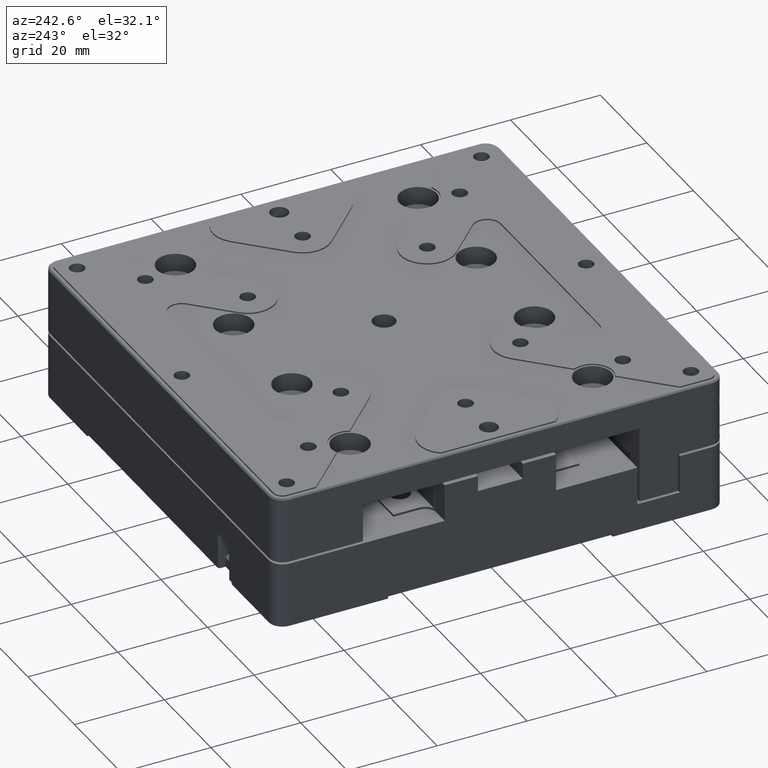
[diagram: clean part render]
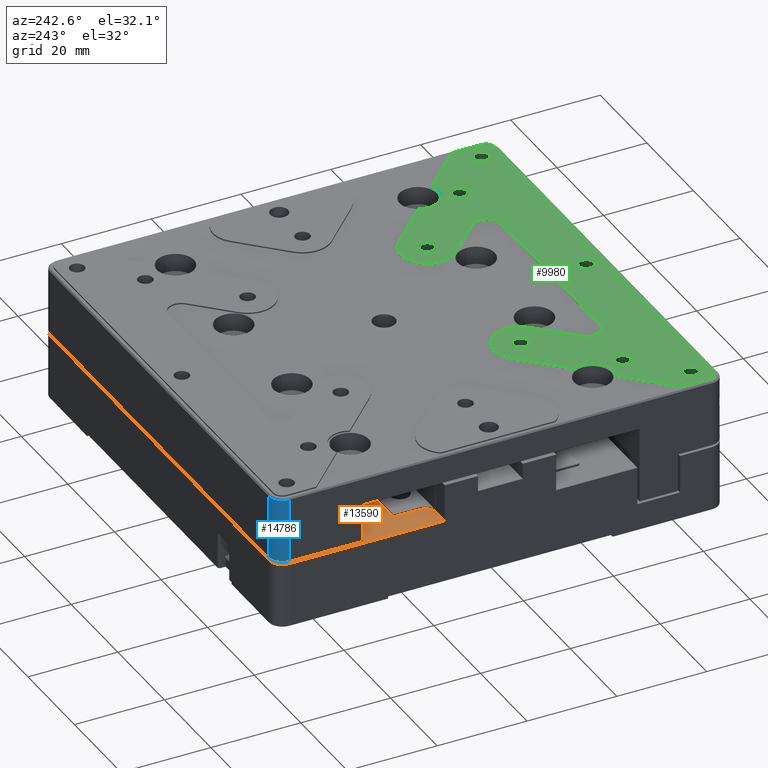
[diagram: same view with three faces highlighted in distinct colors, each labeled with its STEP entity id]
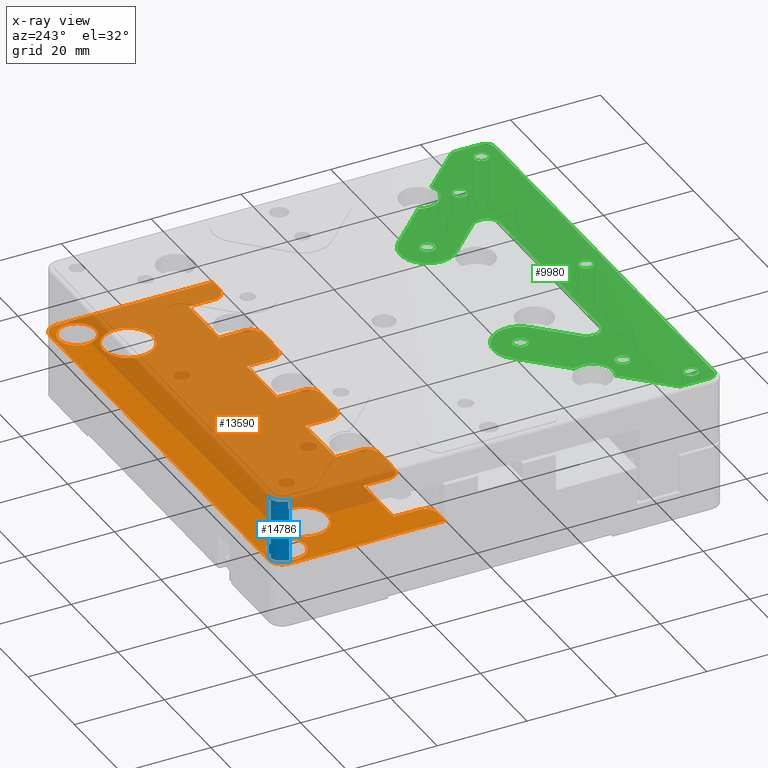
[diagram: x-ray of the same camera — body ghosted, the three highlighted faces saturated]
A machine part, auxiliary view with three faces highlighted in distinct colors.
The next image is the same camera in x-ray (body ghosted, the three faces saturated) — at least one of them is partly hidden behind the body in this view.
Their STEP definitions:

[orange] entity #13590 — the highlighted planar face has unit normal (0, 0, 1).
#23 = LINE ( 'NONE', #1503, #3641 ) ;
#45 = EDGE_CURVE ( 'NONE', #12319, #4092, #114, .T. ) ;
#61 = CARTESIAN_POINT ( 'NONE',  ( -6.000000000000000000, 14.90000000000000036, 0.000000000000000000 ) ) ;
#114 = CIRCLE ( 'NONE', #14638, 2.500000000000002220 ) ;
#212 = EDGE_LOOP ( 'NONE', ( #8987, #11406 ) ) ;
#275 = DIRECTION ( 'NONE',  ( 0.000000000000000000, -1.000000000000000000, -0.000000000000000000 ) ) ;
#311 = EDGE_LOOP ( 'NONE', ( #4847, #12767, #4104, #7690, #5589, #6578, #14980, #6344, #11140, #9844, #2049, #8333, #1089, #13014, #11043, #3247, #9197, #2234, #16227, #2895, #15746, #12099, #2951, #16032, #10015, #2976, #12228, #13439, #12610, #11674 ) ) ;
#356 = CARTESIAN_POINT ( 'NONE',  ( 50.00000000000000000, 47.00000000000000000, 0.000000000000000000 ) ) ;
#375 = VERTEX_POINT ( 'NONE', #9389 ) ;
#416 = CARTESIAN_POINT ( 'NONE',  ( -31.00000000000000000, 20.69999999999999929, 0.000000000000000000 ) ) ;
#720 = CARTESIAN_POINT ( 'NONE',  ( 47.00000000000000000, 50.00000000000000000, 0.000000000000000000 ) ) ;
#878 = EDGE_CURVE ( 'NONE', #7164, #10472, #13311, .T. ) ;
#904 = CIRCLE ( 'NONE', #16218, 2.499999999999998668 ) ;
#913 = DIRECTION ( 'NONE',  ( 0.000000000000000000, -1.000000000000000000, -0.000000000000000000 ) ) ;
#1071 = EDGE_CURVE ( 'NONE', #16219, #15278, #13886, .T. ) ;
#1089 = ORIENTED_EDGE ( 'NONE', *, *, #10615, .T. ) ;
#1130 = EDGE_CURVE ( 'NONE', #6805, #4402, #8594, .T. ) ;
#1132 = DIRECTION ( 'NONE',  ( -0.000000000000000000, 1.000000000000000000, 0.000000000000000000 ) ) ;
#1239 = CARTESIAN_POINT ( 'NONE',  ( -50.00000000000000000, 12.40000000000000213, 0.000000000000000000 ) ) ;
#1261 = DIRECTION ( 'NONE',  ( 1.000000000000000000, 0.000000000000000000, -0.000000000000000000 ) ) ;
#1277 = DIRECTION ( 'NONE',  ( 0.000000000000000000, -1.000000000000000000, -0.000000000000000000 ) ) ;
#1325 = CARTESIAN_POINT ( 'NONE',  ( -31.00000000000000000, 50.00000000000000000, 0.000000000000000000 ) ) ;
#1411 = CARTESIAN_POINT ( 'NONE',  ( 32.00500000000022993, 38.57934007615880034, 0.000000000000000000 ) ) ;
#1503 = CARTESIAN_POINT ( 'NONE',  ( 19.00000000000000355, 50.00000000000000000, 0.000000000000000000 ) ) ;
#1610 = DIRECTION ( 'NONE',  ( 0.000000000000000000, 0.000000000000000000, 1.000000000000000000 ) ) ;
#1611 = DIRECTION ( 'NONE',  ( -1.000000000000000000, 0.000000000000000000, 0.000000000000000000 ) ) ;
#1623 = DIRECTION ( 'NONE',  ( 1.000000000000000000, 0.000000000000000000, -0.000000000000000000 ) ) ;
#1684 = FACE_OUTER_BOUND ( 'NONE', #311, .T. ) ;
#1691 = EDGE_LOOP ( 'NONE', ( #10911 ) ) ;
#1713 = VERTEX_POINT ( 'NONE', #13422 ) ;
#1786 = LINE ( 'NONE', #11881, #9193 ) ;
#1889 = CARTESIAN_POINT ( 'NONE',  ( 31.00000000000000000, 14.90000000000000036, 0.000000000000000000 ) ) ;
#1923 = ORIENTED_EDGE ( 'NONE', *, *, #8298, .T. ) ;
#1989 = EDGE_CURVE ( 'NONE', #10472, #12113, #15227, .T. ) ;
#2027 = VECTOR ( 'NONE', #9925, 1000.000000000000000 ) ;
#2032 = CARTESIAN_POINT ( 'NONE',  ( -44.00000000000000000, 14.90000000000000036, 0.000000000000000000 ) ) ;
#2049 = ORIENTED_EDGE ( 'NONE', *, *, #3032, .T. ) ;
#2070 = CARTESIAN_POINT ( 'NONE',  ( -50.00000000000000711, 12.40000000000000213, 0.000000000000000000 ) ) ;
#2082 = EDGE_CURVE ( 'NONE', #5764, #5764, #7048, .T. ) ;
#2187 = DIRECTION ( 'NONE',  ( 0.000000000000000000, -1.000000000000000000, -0.000000000000000000 ) ) ;
#2234 = ORIENTED_EDGE ( 'NONE', *, *, #5560, .T. ) ;
#2332 = CARTESIAN_POINT ( 'NONE',  ( 21.50000000000000355, 12.40000000000000213, 0.000000000000000000 ) ) ;
#2424 = VERTEX_POINT ( 'NONE', #10344 ) ;
#2442 = LINE ( 'NONE', #16363, #4693 ) ;
#2458 = DIRECTION ( 'NONE',  ( 0.000000000000000000, 0.000000000000000000, 1.000000000000000000 ) ) ;
#2511 = CARTESIAN_POINT ( 'NONE',  ( 44.00000000000000000, 50.00000000000000000, 0.000000000000000000 ) ) ;
#2596 = EDGE_CURVE ( 'NONE', #5903, #7899, #12883, .T. ) ;
#2614 = EDGE_CURVE ( 'NONE', #5907, #6805, #5747, .T. ) ;
#2701 = EDGE_CURVE ( 'NONE', #12699, #8642, #4736, .T. ) ;
#2790 = CARTESIAN_POINT ( 'NONE',  ( -50.00000000000000000, 47.00000000000000000, 0.000000000000000000 ) ) ;
#2867 = CARTESIAN_POINT ( 'NONE',  ( -50.00000000000000000, 20.69999999999999929, 0.000000000000000000 ) ) ;
#2895 = ORIENTED_EDGE ( 'NONE', *, *, #10763, .T. ) ;
#2951 = ORIENTED_EDGE ( 'NONE', *, *, #7321, .T. ) ;
#2976 = ORIENTED_EDGE ( 'NONE', *, *, #5782, .F. ) ;
#2983 = DIRECTION ( 'NONE',  ( 1.000000000000000000, 0.000000000000000000, 0.000000000000000000 ) ) ;
#3032 = EDGE_CURVE ( 'NONE', #5573, #13750, #8680, .T. ) ;
#3057 = CIRCLE ( 'NONE', #4642, 2.499999999999998668 ) ;
#3096 = DIRECTION ( 'NONE',  ( 1.000000000000000000, 0.000000000000000000, 0.000000000000000000 ) ) ;
#3097 = DIRECTION ( 'NONE',  ( 1.000000000000000000, 0.000000000000000000, 0.000000000000000000 ) ) ;
#3181 = DIRECTION ( 'NONE',  ( 1.000000000000000000, 0.000000000000000000, -0.000000000000000000 ) ) ;
#3199 = CARTESIAN_POINT ( 'NONE',  ( 49.12500000000000000, 45.00000000000000000, 0.000000000000000000 ) ) ;
#3247 = ORIENTED_EDGE ( 'NONE', *, *, #13649, .T. ) ;
#3257 = DIRECTION ( 'NONE',  ( 0.000000000000000000, 0.000000000000000000, 1.000000000000000000 ) ) ;
#3313 = CARTESIAN_POINT ( 'NONE',  ( 50.00000000000000000, 0.000000000000000000, 0.000000000000000000 ) ) ;
#3331 = AXIS2_PLACEMENT_3D ( 'NONE', #7198, #10760, #8356 ) ;
#3630 = VERTEX_POINT ( 'NONE', #10071 ) ;
#3641 = VECTOR ( 'NONE', #275, 1000.000000000000000 ) ;
#3648 = VERTEX_POINT ( 'NONE', #5194 ) ;
#3742 = LINE ( 'NONE', #15148, #13647 ) ;
#3798 = EDGE_CURVE ( 'NONE', #3648, #12522, #11197, .T. ) ;
#3870 = CARTESIAN_POINT ( 'NONE',  ( 32.00500000000022993, 36.42065992384119966, 0.000000000000000000 ) ) ;
#3933 = LINE ( 'NONE', #2511, #6858 ) ;
#3986 = VECTOR ( 'NONE', #14633, 1000.000000000000000 ) ;
#4036 = DIRECTION ( 'NONE',  ( -0.000000000000000000, 1.000000000000000000, 0.000000000000000000 ) ) ;
#4087 = VECTOR ( 'NONE', #6124, 1000.000000000000000 ) ;
#4092 = VERTEX_POINT ( 'NONE', #7729 ) ;
#4104 = ORIENTED_EDGE ( 'NONE', *, *, #4506, .T. ) ;
#4268 = DIRECTION ( 'NONE',  ( -0.000000000000000000, -0.000000000000000000, 1.000000000000000000 ) ) ;
#4281 = LINE ( 'NONE', #5439, #7387 ) ;
#4306 = CARTESIAN_POINT ( 'NONE',  ( -53.50000000000000000, 12.40000000000000213, 0.000000000000000000 ) ) ;
#4326 = DIRECTION ( 'NONE',  ( 1.000000000000000000, 0.000000000000000000, 0.000000000000000000 ) ) ;
#4340 = EDGE_CURVE ( 'NONE', #15278, #5907, #7370, .T. ) ;
#4342 = CIRCLE ( 'NONE', #5128, 3.000000000000002665 ) ;
#4382 = VECTOR ( 'NONE', #14965, 1000.000000000000000 ) ;
#4402 = VERTEX_POINT ( 'NONE', #4875 ) ;
#4506 = EDGE_CURVE ( 'NONE', #7378, #16219, #9096, .T. ) ;
#4574 = CARTESIAN_POINT ( 'NONE',  ( -32.00500000000022993, 38.57934007615880034, 0.000000000000000000 ) ) ;
#4642 = AXIS2_PLACEMENT_3D ( 'NONE', #14284, #1610, #3096 ) ;
#4673 = DIRECTION ( 'NONE',  ( 1.000000000000000000, 0.000000000000000000, 0.000000000000000000 ) ) ;
#4693 = VECTOR ( 'NONE', #1132, 1000.000000000000000 ) ;
#4736 = LINE ( 'NONE', #13578, #4955 ) ;
#4749 = CARTESIAN_POINT ( 'NONE',  ( 3.500000000000000444, 12.40000000000000213, 0.000000000000000000 ) ) ;
#4847 = ORIENTED_EDGE ( 'NONE', *, *, #12701, .T. ) ;
#4874 = CARTESIAN_POINT ( 'NONE',  ( -50.00000000000000000, 12.40000000000000213, 0.000000000000000000 ) ) ;
#4875 = CARTESIAN_POINT ( 'NONE',  ( -19.00000000000000000, 20.69999999999999929, 0.000000000000000000 ) ) ;
#4955 = VECTOR ( 'NONE', #8460, 1000.000000000000000 ) ;
#4961 = DIRECTION ( 'NONE',  ( 1.000000000000000000, 0.000000000000000000, -0.000000000000000000 ) ) ;
#5053 = CARTESIAN_POINT ( 'NONE',  ( -47.00000000000000000, 50.00000000000000000, 0.000000000000000000 ) ) ;
#5095 = EDGE_LOOP ( 'NONE', ( #12544, #1923 ) ) ;
#5122 = DIRECTION ( 'NONE',  ( 1.000000000000000000, 0.000000000000000000, -0.000000000000000000 ) ) ;
#5128 = AXIS2_PLACEMENT_3D ( 'NONE', #6585, #4268, #1611 ) ;
#5194 = CARTESIAN_POINT ( 'NONE',  ( -32.00500000000022993, 36.42065992384119966, 0.000000000000000000 ) ) ;
#5236 = EDGE_CURVE ( 'NONE', #12522, #3648, #12284, .T. ) ;
#5417 = CARTESIAN_POINT ( 'NONE',  ( 21.50000000000000000, 14.90000000000000036, 0.000000000000000000 ) ) ;
#5431 = AXIS2_PLACEMENT_3D ( 'NONE', #13807, #2458, #12406 ) ;
#5439 = CARTESIAN_POINT ( 'NONE',  ( 32.00500000000000256, 50.00000000000000000, 0.000000000000000000 ) ) ;
#5451 = VECTOR ( 'NONE', #913, 1000.000000000000000 ) ;
#5560 = EDGE_CURVE ( 'NONE', #8642, #11519, #3057, .T. ) ;
#5573 = VERTEX_POINT ( 'NONE', #14517 ) ;
#5576 = DIRECTION ( 'NONE',  ( 0.000000000000000000, 0.000000000000000000, 1.000000000000000000 ) ) ;
#5589 = ORIENTED_EDGE ( 'NONE', *, *, #4340, .T. ) ;
#5593 = DIRECTION ( 'NONE',  ( 1.000000000000000000, 0.000000000000000000, -0.000000000000000000 ) ) ;
#5644 = EDGE_CURVE ( 'NONE', #13750, #9316, #8615, .T. ) ;
#5747 = CIRCLE ( 'NONE', #13674, 2.499999999999998668 ) ;
#5748 = CIRCLE ( 'NONE', #11026, 5.600000000000000533 ) ;
#5764 = VERTEX_POINT ( 'NONE', #3199 ) ;
#5782 = EDGE_CURVE ( 'NONE', #10306, #7899, #3742, .T. ) ;
#5816 = DIRECTION ( 'NONE',  ( 1.000000000000000000, 0.000000000000000000, 0.000000000000000000 ) ) ;
#5876 = DIRECTION ( 'NONE',  ( 1.000000000000000000, 0.000000000000000000, 0.000000000000000000 ) ) ;
#5903 = VERTEX_POINT ( 'NONE', #356 ) ;
#5907 = VERTEX_POINT ( 'NONE', #6647 ) ;
#5952 = VECTOR ( 'NONE', #2187, 1000.000000000000000 ) ;
#5988 = DIRECTION ( 'NONE',  ( 1.000000000000000000, 0.000000000000000000, 0.000000000000000000 ) ) ;
#6124 = DIRECTION ( 'NONE',  ( 1.000000000000000000, 0.000000000000000000, -0.000000000000000000 ) ) ;
#6344 = ORIENTED_EDGE ( 'NONE', *, *, #10754, .T. ) ;
#6556 = VERTEX_POINT ( 'NONE', #61 ) ;
#6557 = DIRECTION ( 'NONE',  ( 0.000000000000000000, 0.000000000000000000, 1.000000000000000000 ) ) ;
#6578 = ORIENTED_EDGE ( 'NONE', *, *, #2614, .T. ) ;
#6585 = CARTESIAN_POINT ( 'NONE',  ( -47.00000000000000000, 47.00000000000000000, 0.000000000000000000 ) ) ;
#6647 = CARTESIAN_POINT ( 'NONE',  ( -21.50000000000000000, 12.40000000000000213, 0.000000000000000000 ) ) ;
#6741 = DIRECTION ( 'NONE',  ( 1.000000000000000000, 0.000000000000000000, -0.000000000000000000 ) ) ;
#6805 = VERTEX_POINT ( 'NONE', #12367 ) ;
#6826 = FACE_BOUND ( 'NONE', #5095, .T. ) ;
#6828 = LINE ( 'NONE', #9312, #7113 ) ;
#6858 = VECTOR ( 'NONE', #1277, 1000.000000000000000 ) ;
#6907 = FACE_BOUND ( 'NONE', #212, .T. ) ;
#6978 = DIRECTION ( 'NONE',  ( -0.000000000000000000, -0.000000000000000000, -1.000000000000000000 ) ) ;
#7024 = VECTOR ( 'NONE', #5122, 1000.000000000000000 ) ;
#7048 = CIRCLE ( 'NONE', #3331, 4.125000000000003553 ) ;
#7084 = CARTESIAN_POINT ( 'NONE',  ( -5.999999999999998224, 50.00000000000000000, 0.000000000000000000 ) ) ;
#7095 = EDGE_CURVE ( 'NONE', #9097, #7164, #13316, .T. ) ;
#7112 = EDGE_CURVE ( 'NONE', #375, #375, #13903, .T. ) ;
#7113 = VECTOR ( 'NONE', #3181, 1000.000000000000000 ) ;
#7164 = VERTEX_POINT ( 'NONE', #2070 ) ;
#7198 = CARTESIAN_POINT ( 'NONE',  ( 45.00000000000000000, 45.00000000000000000, 0.000000000000000000 ) ) ;
#7261 = CARTESIAN_POINT ( 'NONE',  ( -3.500000000000000000, 14.90000000000000036, 0.000000000000000000 ) ) ;
#7321 = EDGE_CURVE ( 'NONE', #4092, #14963, #11164, .T. ) ;
#7370 = LINE ( 'NONE', #1239, #4087 ) ;
#7378 = VERTEX_POINT ( 'NONE', #416 ) ;
#7387 = VECTOR ( 'NONE', #4036, 1000.000000000000000 ) ;
#7388 = CARTESIAN_POINT ( 'NONE',  ( -44.00000000000000000, 50.00000000000000000, 0.000000000000000000 ) ) ;
#7553 = AXIS2_PLACEMENT_3D ( 'NONE', #8443, #9447, #5876 ) ;
#7670 = VECTOR ( 'NONE', #8366, 1000.000000000000000 ) ;
#7690 = ORIENTED_EDGE ( 'NONE', *, *, #1071, .T. ) ;
#7701 = VERTEX_POINT ( 'NONE', #8582 ) ;
#7729 = CARTESIAN_POINT ( 'NONE',  ( 46.50000000000000000, 12.40000000000000213, 0.000000000000000000 ) ) ;
#7899 = VERTEX_POINT ( 'NONE', #720 ) ;
#8034 = AXIS2_PLACEMENT_3D ( 'NONE', #10311, #8149, #6741 ) ;
#8149 = DIRECTION ( 'NONE',  ( 0.000000000000000000, 0.000000000000000000, 1.000000000000000000 ) ) ;
#8220 = DIRECTION ( 'NONE',  ( 0.000000000000000000, 0.000000000000000000, 1.000000000000000000 ) ) ;
#8298 = EDGE_CURVE ( 'NONE', #10923, #15067, #5748, .T. ) ;
#8313 = CARTESIAN_POINT ( 'NONE',  ( -28.50000000000000000, 12.40000000000000213, 0.000000000000000000 ) ) ;
#8333 = ORIENTED_EDGE ( 'NONE', *, *, #5644, .T. ) ;
#8356 = DIRECTION ( 'NONE',  ( 1.000000000000000000, 0.000000000000000000, 0.000000000000000000 ) ) ;
#8366 = DIRECTION ( 'NONE',  ( 0.000000000000000000, -1.000000000000000000, -0.000000000000000000 ) ) ;
#8443 = CARTESIAN_POINT ( 'NONE',  ( -45.00000000000000000, 45.00000000000000000, 0.000000000000000000 ) ) ;
#8460 = DIRECTION ( 'NONE',  ( 1.000000000000000000, 0.000000000000000000, -0.000000000000000000 ) ) ;
#8491 = CARTESIAN_POINT ( 'NONE',  ( 6.000000000000000000, 14.90000000000000036, 0.000000000000000000 ) ) ;
#8499 = DIRECTION ( 'NONE',  ( 1.000000000000000000, 0.000000000000000000, 0.000000000000000000 ) ) ;
#8580 = DIRECTION ( 'NONE',  ( 0.000000000000000000, 0.000000000000000000, 1.000000000000000000 ) ) ;
#8582 = CARTESIAN_POINT ( 'NONE',  ( -44.00000000000000711, 20.69999999999999929, 0.000000000000000000 ) ) ;
#8594 = LINE ( 'NONE', #9918, #4382 ) ;
#8607 = LINE ( 'NONE', #3313, #7670 ) ;
#8615 = CIRCLE ( 'NONE', #8880, 2.500000000000000000 ) ;
#8642 = VERTEX_POINT ( 'NONE', #12596 ) ;
#8680 = LINE ( 'NONE', #12162, #10811 ) ;
#8762 = LINE ( 'NONE', #8934, #7024 ) ;
#8880 = AXIS2_PLACEMENT_3D ( 'NONE', #10943, #10788, #5988 ) ;
#8934 = CARTESIAN_POINT ( 'NONE',  ( -50.00000000000000000, 20.69999999999999929, 0.000000000000000000 ) ) ;
#8987 = ORIENTED_EDGE ( 'NONE', *, *, #5236, .T. ) ;
#9096 = LINE ( 'NONE', #1325, #13337 ) ;
#9097 = VERTEX_POINT ( 'NONE', #2790 ) ;
#9193 = VECTOR ( 'NONE', #5593, 1000.000000000000000 ) ;
#9197 = ORIENTED_EDGE ( 'NONE', *, *, #2701, .T. ) ;
#9312 = CARTESIAN_POINT ( 'NONE',  ( -50.00000000000000000, 20.69999999999999929, 0.000000000000000000 ) ) ;
#9316 = VERTEX_POINT ( 'NONE', #8491 ) ;
#9389 = CARTESIAN_POINT ( 'NONE',  ( -40.87499999999999289, 45.00000000000000000, 0.000000000000000000 ) ) ;
#9447 = DIRECTION ( 'NONE',  ( -0.000000000000000000, -0.000000000000000000, -1.000000000000000000 ) ) ;
#9458 = VECTOR ( 'NONE', #1623, 1000.000000000000000 ) ;
#9545 = DIRECTION ( 'NONE',  ( 1.000000000000000000, 0.000000000000000000, 0.000000000000000000 ) ) ;
#9591 = DIRECTION ( 'NONE',  ( 1.000000000000000000, 0.000000000000000000, 0.000000000000000000 ) ) ;
#9599 = EDGE_CURVE ( 'NONE', #7701, #7378, #6828, .T. ) ;
#9725 = LINE ( 'NONE', #7084, #11620 ) ;
#9809 = DIRECTION ( 'NONE',  ( 0.000000000000000000, -1.000000000000000000, -0.000000000000000000 ) ) ;
#9844 = ORIENTED_EDGE ( 'NONE', *, *, #11692, .T. ) ;
#9918 = CARTESIAN_POINT ( 'NONE',  ( -19.00000000000000000, 50.00000000000000000, 0.000000000000000000 ) ) ;
#9925 = DIRECTION ( 'NONE',  ( 1.000000000000000000, 0.000000000000000000, -0.000000000000000000 ) ) ;
#10015 = ORIENTED_EDGE ( 'NONE', *, *, #2596, .T. ) ;
#10071 = CARTESIAN_POINT ( 'NONE',  ( 44.00000000000000711, 20.69999999999999929, 0.000000000000000000 ) ) ;
#10171 = CARTESIAN_POINT ( 'NONE',  ( -5.999999999999998224, 20.69999999999999929, 0.000000000000000000 ) ) ;
#10266 = EDGE_CURVE ( 'NONE', #5903, #14963, #8607, .T. ) ;
#10306 = VERTEX_POINT ( 'NONE', #5053 ) ;
#10311 = CARTESIAN_POINT ( 'NONE',  ( -50.00000000000000000, 50.00000000000000000, 0.000000000000000000 ) ) ;
#10344 = CARTESIAN_POINT ( 'NONE',  ( 19.00000000000000355, 14.90000000000000036, 0.000000000000000000 ) ) ;
#10472 = VERTEX_POINT ( 'NONE', #10738 ) ;
#10540 = AXIS2_PLACEMENT_3D ( 'NONE', #7261, #8580, #8499 ) ;
#10546 = FACE_BOUND ( 'NONE', #15909, .T. ) ;
#10615 = EDGE_CURVE ( 'NONE', #9316, #14847, #2442, .T. ) ;
#10637 = DIRECTION ( 'NONE',  ( 1.000000000000000000, 0.000000000000000000, 0.000000000000000000 ) ) ;
#10738 = CARTESIAN_POINT ( 'NONE',  ( -46.50000000000000000, 12.40000000000000213, 0.000000000000000000 ) ) ;
#10754 = EDGE_CURVE ( 'NONE', #4402, #14658, #14213, .T. ) ;
#10760 = DIRECTION ( 'NONE',  ( -0.000000000000000000, -0.000000000000000000, -1.000000000000000000 ) ) ;
#10763 = EDGE_CURVE ( 'NONE', #1713, #3630, #1786, .T. ) ;
#10788 = DIRECTION ( 'NONE',  ( 0.000000000000000000, 0.000000000000000000, 1.000000000000000000 ) ) ;
#10811 = VECTOR ( 'NONE', #4961, 1000.000000000000000 ) ;
#10911 = ORIENTED_EDGE ( 'NONE', *, *, #2082, .T. ) ;
#10923 = VERTEX_POINT ( 'NONE', #1411 ) ;
#10943 = CARTESIAN_POINT ( 'NONE',  ( 3.500000000000000000, 14.90000000000000036, 0.000000000000000000 ) ) ;
#10984 = CARTESIAN_POINT ( 'NONE',  ( 5.999999999999998224, 20.69999999999999929, 0.000000000000000000 ) ) ;
#11008 = EDGE_CURVE ( 'NONE', #14550, #2424, #23, .T. ) ;
#11026 = AXIS2_PLACEMENT_3D ( 'NONE', #11940, #6978, #9545 ) ;
#11043 = ORIENTED_EDGE ( 'NONE', *, *, #11008, .T. ) ;
#11140 = ORIENTED_EDGE ( 'NONE', *, *, #12124, .T. ) ;
#11164 = LINE ( 'NONE', #4874, #2027 ) ;
#11181 = DIRECTION ( 'NONE',  ( -0.000000000000000000, 1.000000000000000000, 0.000000000000000000 ) ) ;
#11197 = CIRCLE ( 'NONE', #13837, 5.600000000000000533 ) ;
#11226 = CARTESIAN_POINT ( 'NONE',  ( 50.00000000000000711, 12.40000000000000213, 0.000000000000000000 ) ) ;
#11298 = AXIS2_PLACEMENT_3D ( 'NONE', #13099, #8220, #5816 ) ;
#11406 = ORIENTED_EDGE ( 'NONE', *, *, #3798, .T. ) ;
#11519 = VERTEX_POINT ( 'NONE', #1889 ) ;
#11620 = VECTOR ( 'NONE', #9809, 1000.000000000000000 ) ;
#11674 = ORIENTED_EDGE ( 'NONE', *, *, #1989, .T. ) ;
#11692 = EDGE_CURVE ( 'NONE', #6556, #5573, #12117, .T. ) ;
#11745 = ORIENTED_EDGE ( 'NONE', *, *, #7112, .T. ) ;
#11789 = PLANE ( 'NONE',  #8034 ) ;
#11881 = CARTESIAN_POINT ( 'NONE',  ( -50.00000000000000000, 20.69999999999999929, 0.000000000000000000 ) ) ;
#11940 = CARTESIAN_POINT ( 'NONE',  ( 37.50000000000000000, 37.50000000000000000, 0.000000000000000000 ) ) ;
#11945 = EDGE_CURVE ( 'NONE', #15067, #10923, #4281, .T. ) ;
#12025 = VECTOR ( 'NONE', #9591, 1000.000000000000000 ) ;
#12058 = AXIS2_PLACEMENT_3D ( 'NONE', #15484, #6557, #2983 ) ;
#12066 = CARTESIAN_POINT ( 'NONE',  ( 31.00000000000000000, 50.00000000000000000, 0.000000000000000000 ) ) ;
#12099 = ORIENTED_EDGE ( 'NONE', *, *, #45, .T. ) ;
#12113 = VERTEX_POINT ( 'NONE', #2032 ) ;
#12117 = CIRCLE ( 'NONE', #10540, 2.500000000000000000 ) ;
#12124 = EDGE_CURVE ( 'NONE', #14658, #6556, #9725, .T. ) ;
#12151 = CARTESIAN_POINT ( 'NONE',  ( -31.00000000000000000, 14.90000000000000036, 0.000000000000000000 ) ) ;
#12162 = CARTESIAN_POINT ( 'NONE',  ( -50.00000000000000000, 12.40000000000000213, 0.000000000000000000 ) ) ;
#12195 = EDGE_CURVE ( 'NONE', #3630, #12319, #3933, .T. ) ;
#12228 = ORIENTED_EDGE ( 'NONE', *, *, #13622, .T. ) ;
#12284 = LINE ( 'NONE', #16019, #5952 ) ;
#12319 = VERTEX_POINT ( 'NONE', #16180 ) ;
#12367 = CARTESIAN_POINT ( 'NONE',  ( -19.00000000000000000, 14.90000000000000036, 0.000000000000000000 ) ) ;
#12406 = DIRECTION ( 'NONE',  ( 1.000000000000000000, 0.000000000000000000, 0.000000000000000000 ) ) ;
#12522 = VERTEX_POINT ( 'NONE', #4574 ) ;
#12544 = ORIENTED_EDGE ( 'NONE', *, *, #11945, .T. ) ;
#12596 = CARTESIAN_POINT ( 'NONE',  ( 28.49999999999999645, 12.40000000000000213, 0.000000000000000000 ) ) ;
#12610 = ORIENTED_EDGE ( 'NONE', *, *, #878, .T. ) ;
#12699 = VERTEX_POINT ( 'NONE', #2332 ) ;
#12701 = EDGE_CURVE ( 'NONE', #12113, #7701, #13762, .T. ) ;
#12767 = ORIENTED_EDGE ( 'NONE', *, *, #9599, .T. ) ;
#12817 = DIRECTION ( 'NONE',  ( 0.000000000000000000, -1.000000000000000000, -0.000000000000000000 ) ) ;
#12883 = CIRCLE ( 'NONE', #11298, 3.000000000000002665 ) ;
#13014 = ORIENTED_EDGE ( 'NONE', *, *, #14628, .T. ) ;
#13099 = CARTESIAN_POINT ( 'NONE',  ( 47.00000000000000000, 47.00000000000000000, 0.000000000000000000 ) ) ;
#13102 = VECTOR ( 'NONE', #11181, 1000.000000000000000 ) ;
#13191 = FACE_BOUND ( 'NONE', #1691, .T. ) ;
#13311 = LINE ( 'NONE', #4306, #12025 ) ;
#13316 = LINE ( 'NONE', #15810, #5451 ) ;
#13337 = VECTOR ( 'NONE', #12817, 1000.000000000000000 ) ;
#13422 = CARTESIAN_POINT ( 'NONE',  ( 31.00000000000000000, 20.69999999999999929, 0.000000000000000000 ) ) ;
#13439 = ORIENTED_EDGE ( 'NONE', *, *, #7095, .T. ) ;
#13474 = LINE ( 'NONE', #12066, #3986 ) ;
#13578 = CARTESIAN_POINT ( 'NONE',  ( -50.00000000000000000, 12.40000000000000213, 0.000000000000000000 ) ) ;
#13590 = ADVANCED_FACE ( 'NONE', ( #6907, #6826, #10546, #13191, #1684 ), #11789, .T. ) ;
#13622 = EDGE_CURVE ( 'NONE', #10306, #9097, #4342, .T. ) ;
#13647 = VECTOR ( 'NONE', #1261, 1000.000000000000000 ) ;
#13649 = EDGE_CURVE ( 'NONE', #2424, #12699, #904, .T. ) ;
#13674 = AXIS2_PLACEMENT_3D ( 'NONE', #14589, #5576, #4326 ) ;
#13750 = VERTEX_POINT ( 'NONE', #4749 ) ;
#13762 = LINE ( 'NONE', #7388, #13102 ) ;
#13807 = CARTESIAN_POINT ( 'NONE',  ( -28.50000000000000000, 14.90000000000000036, 0.000000000000000000 ) ) ;
#13837 = AXIS2_PLACEMENT_3D ( 'NONE', #14455, #15529, #10637 ) ;
#13886 = CIRCLE ( 'NONE', #5431, 2.499999999999998668 ) ;
#13903 = CIRCLE ( 'NONE', #7553, 4.125000000000003553 ) ;
#14068 = CARTESIAN_POINT ( 'NONE',  ( 19.00000000000000355, 20.69999999999999929, 0.000000000000000000 ) ) ;
#14213 = LINE ( 'NONE', #2867, #9458 ) ;
#14284 = CARTESIAN_POINT ( 'NONE',  ( 28.50000000000000000, 14.90000000000000036, 0.000000000000000000 ) ) ;
#14455 = CARTESIAN_POINT ( 'NONE',  ( -37.50000000000000000, 37.50000000000000000, 0.000000000000000000 ) ) ;
#14517 = CARTESIAN_POINT ( 'NONE',  ( -3.500000000000000444, 12.40000000000000213, 0.000000000000000000 ) ) ;
#14550 = VERTEX_POINT ( 'NONE', #14068 ) ;
#14589 = CARTESIAN_POINT ( 'NONE',  ( -21.50000000000000000, 14.90000000000000036, 0.000000000000000000 ) ) ;
#14628 = EDGE_CURVE ( 'NONE', #14847, #14550, #8762, .T. ) ;
#14633 = DIRECTION ( 'NONE',  ( -0.000000000000000000, 1.000000000000000000, 0.000000000000000000 ) ) ;
#14638 = AXIS2_PLACEMENT_3D ( 'NONE', #15918, #3257, #4673 ) ;
#14658 = VERTEX_POINT ( 'NONE', #10171 ) ;
#14847 = VERTEX_POINT ( 'NONE', #10984 ) ;
#14963 = VERTEX_POINT ( 'NONE', #11226 ) ;
#14965 = DIRECTION ( 'NONE',  ( -0.000000000000000000, 1.000000000000000000, 0.000000000000000000 ) ) ;
#14980 = ORIENTED_EDGE ( 'NONE', *, *, #1130, .T. ) ;
#15067 = VERTEX_POINT ( 'NONE', #3870 ) ;
#15148 = CARTESIAN_POINT ( 'NONE',  ( -50.00000000000000000, 50.00000000000000000, 0.000000000000000000 ) ) ;
#15227 = CIRCLE ( 'NONE', #12058, 2.500000000000002220 ) ;
#15278 = VERTEX_POINT ( 'NONE', #8313 ) ;
#15484 = CARTESIAN_POINT ( 'NONE',  ( -46.50000000000000000, 14.90000000000000036, 0.000000000000000000 ) ) ;
#15513 = DIRECTION ( 'NONE',  ( 0.000000000000000000, 0.000000000000000000, 1.000000000000000000 ) ) ;
#15529 = DIRECTION ( 'NONE',  ( -0.000000000000000000, -0.000000000000000000, -1.000000000000000000 ) ) ;
#15746 = ORIENTED_EDGE ( 'NONE', *, *, #12195, .T. ) ;
#15810 = CARTESIAN_POINT ( 'NONE',  ( -50.00000000000000000, 0.000000000000000000, 0.000000000000000000 ) ) ;
#15909 = EDGE_LOOP ( 'NONE', ( #11745 ) ) ;
#15918 = CARTESIAN_POINT ( 'NONE',  ( 46.50000000000000000, 14.90000000000000036, 0.000000000000000000 ) ) ;
#16019 = CARTESIAN_POINT ( 'NONE',  ( -32.00500000000000256, 50.00000000000000000, 0.000000000000000000 ) ) ;
#16032 = ORIENTED_EDGE ( 'NONE', *, *, #10266, .F. ) ;
#16180 = CARTESIAN_POINT ( 'NONE',  ( 44.00000000000000000, 14.90000000000000036, 0.000000000000000000 ) ) ;
#16218 = AXIS2_PLACEMENT_3D ( 'NONE', #5417, #15513, #3097 ) ;
#16219 = VERTEX_POINT ( 'NONE', #12151 ) ;
#16227 = ORIENTED_EDGE ( 'NONE', *, *, #16232, .T. ) ;
#16232 = EDGE_CURVE ( 'NONE', #11519, #1713, #13474, .T. ) ;
#16363 = CARTESIAN_POINT ( 'NONE',  ( 5.999999999999998224, 50.00000000000000000, 0.000000000000000000 ) ) ;

[blue] entity #14786 — the highlighted cylindrical surface (edge-blend (fillet) strip) has radius 3 mm, axis along (0, 0, -1).
#586 = VERTEX_POINT ( 'NONE', #8772 ) ;
#1688 = EDGE_CURVE ( 'NONE', #12602, #9987, #3243, .T. ) ;
#1994 = CARTESIAN_POINT ( 'NONE',  ( -46.99999907404203725, 49.99999999999970868, 0.5000000000000004441 ) ) ;
#2318 = EDGE_CURVE ( 'NONE', #6787, #9987, #4415, .T. ) ;
#2319 = AXIS2_PLACEMENT_3D ( 'NONE', #9575, #13379, #7100 ) ;
#3243 = LINE ( 'NONE', #14751, #14958 ) ;
#3254 = ORIENTED_EDGE ( 'NONE', *, *, #3552, .T. ) ;
#3335 = VECTOR ( 'NONE', #10831, 1000.000000000000000 ) ;
#3552 = EDGE_CURVE ( 'NONE', #586, #12602, #7884, .T. ) ;
#4415 = CIRCLE ( 'NONE', #13136, 3.000000000000002665 ) ;
#6041 = DIRECTION ( 'NONE',  ( 0.000000000000000000, 0.000000000000000000, -1.000000000000000000 ) ) ;
#6284 = DIRECTION ( 'NONE',  ( -1.000000000000000000, 0.000000000000000000, 0.000000000000000000 ) ) ;
#6787 = VERTEX_POINT ( 'NONE', #15923 ) ;
#7053 = EDGE_LOOP ( 'NONE', ( #12381, #3254, #7955, #9314 ) ) ;
#7100 = DIRECTION ( 'NONE',  ( -1.000000000000000000, 0.000000000000000000, 0.000000000000000000 ) ) ;
#7524 = EDGE_CURVE ( 'NONE', #6787, #586, #10904, .T. ) ;
#7811 = AXIS2_PLACEMENT_3D ( 'NONE', #10420, #15701, #15462 ) ;
#7884 = CIRCLE ( 'NONE', #2319, 3.000000000000002665 ) ;
#7955 = ORIENTED_EDGE ( 'NONE', *, *, #1688, .T. ) ;
#8533 = DIRECTION ( 'NONE',  ( 0.000000000000000000, 0.000000000000000000, -1.000000000000000000 ) ) ;
#8772 = CARTESIAN_POINT ( 'NONE',  ( -49.99999999995122835, 46.99999869464232916, 14.90000000002009983 ) ) ;
#9314 = ORIENTED_EDGE ( 'NONE', *, *, #2318, .F. ) ;
#9575 = CARTESIAN_POINT ( 'NONE',  ( -47.00000000000000000, 47.00000000000000000, 14.89999999997189839 ) ) ;
#9987 = VERTEX_POINT ( 'NONE', #1994 ) ;
#10420 = CARTESIAN_POINT ( 'NONE',  ( -47.00000000000000000, 47.00000000000000000, 35.05400000000000205 ) ) ;
#10655 = CYLINDRICAL_SURFACE ( 'NONE', #7811, 3.000000000000002665 ) ;
#10656 = CARTESIAN_POINT ( 'NONE',  ( -50.00000000000000000, 47.00000000000000000, 0.000000000000000000 ) ) ;
#10831 = DIRECTION ( 'NONE',  ( -0.000000000000000000, -0.000000000000000000, 1.000000000000000000 ) ) ;
#10904 = LINE ( 'NONE', #10656, #3335 ) ;
#12103 = CARTESIAN_POINT ( 'NONE',  ( -46.99999907420895795, 50.00000000003677769, 14.89999999994887858 ) ) ;
#12381 = ORIENTED_EDGE ( 'NONE', *, *, #7524, .T. ) ;
#12602 = VERTEX_POINT ( 'NONE', #12103 ) ;
#13136 = AXIS2_PLACEMENT_3D ( 'NONE', #13736, #6041, #6284 ) ;
#13148 = FACE_OUTER_BOUND ( 'NONE', #7053, .T. ) ;
#13379 = DIRECTION ( 'NONE',  ( 0.000000000000000000, 0.000000000000000000, -1.000000000000000000 ) ) ;
#13736 = CARTESIAN_POINT ( 'NONE',  ( -47.00000000000000000, 47.00000000000000000, 0.5000000000000004441 ) ) ;
#14751 = CARTESIAN_POINT ( 'NONE',  ( -46.99999814808407450, 49.99999999999942446, 35.05400000000000205 ) ) ;
#14786 = ADVANCED_FACE ( 'NONE', ( #13148 ), #10655, .T. ) ;
#14958 = VECTOR ( 'NONE', #8533, 1000.000000000000000 ) ;
#15462 = DIRECTION ( 'NONE',  ( -1.000000000000000000, 0.000000000000000000, 0.000000000000000000 ) ) ;
#15701 = DIRECTION ( 'NONE',  ( 0.000000000000000000, 0.000000000000000000, -1.000000000000000000 ) ) ;
#15923 = CARTESIAN_POINT ( 'NONE',  ( -50.00000000000000000, 47.00000000000000000, 0.5000000000000002220 ) ) ;

[green] entity #9980 — the highlighted planar face has unit normal (0, 0, 1).
#50 = VERTEX_POINT ( 'NONE', #1202 ) ;
#140 = CIRCLE ( 'NONE', #10959, 6.000000000000000000 ) ;
#168 = CIRCLE ( 'NONE', #4917, 2.999999999999999112 ) ;
#308 = VERTEX_POINT ( 'NONE', #2763 ) ;
#323 = DIRECTION ( 'NONE',  ( -0.000000000000000000, -0.000000000000000000, -1.000000000000000000 ) ) ;
#384 = AXIS2_PLACEMENT_3D ( 'NONE', #15260, #12613, #3932 ) ;
#400 = CARTESIAN_POINT ( 'NONE',  ( -18.35000000000000142, -20.00000000000000000, 15.50000000000000000 ) ) ;
#448 = VECTOR ( 'NONE', #7103, 1000.000000000000000 ) ;
#467 = VECTOR ( 'NONE', #15482, 1000.000000000000000 ) ;
#522 = AXIS2_PLACEMENT_3D ( 'NONE', #2857, #11383, #3942 ) ;
#569 = VERTEX_POINT ( 'NONE', #400 ) ;
#611 = DIRECTION ( 'NONE',  ( 1.000000000000000000, 0.000000000000000000, 0.000000000000000000 ) ) ;
#675 = CARTESIAN_POINT ( 'NONE',  ( 21.27207793863999896, -34.00000000000000000, 15.50000000000000000 ) ) ;
#741 = DIRECTION ( 'NONE',  ( 1.000000000000000000, 0.000000000000000000, 0.000000000000000000 ) ) ;
#744 = DIRECTION ( 'NONE',  ( -0.7071067811869202746, 0.7071067811861746488, 0.000000000000000000 ) ) ;
#749 = EDGE_CURVE ( 'NONE', #8973, #7214, #8844, .T. ) ;
#777 = ORIENTED_EDGE ( 'NONE', *, *, #4691, .T. ) ;
#793 = EDGE_CURVE ( 'NONE', #5365, #5365, #3826, .T. ) ;
#796 = ORIENTED_EDGE ( 'NONE', *, *, #12512, .T. ) ;
#859 = ORIENTED_EDGE ( 'NONE', *, *, #9188, .T. ) ;
#1069 = LINE ( 'NONE', #10990, #10316 ) ;
#1085 = VERTEX_POINT ( 'NONE', #14811 ) ;
#1202 = CARTESIAN_POINT ( 'NONE',  ( 36.64999999999999858, -35.00000000000000000, 15.50000000000000000 ) ) ;
#1424 = EDGE_CURVE ( 'NONE', #3432, #3693, #11309, .T. ) ;
#1453 = EDGE_CURVE ( 'NONE', #569, #569, #3592, .T. ) ;
#1718 = AXIS2_PLACEMENT_3D ( 'NONE', #12552, #323, #5363 ) ;
#1812 = LINE ( 'NONE', #14629, #448 ) ;
#1852 = CARTESIAN_POINT ( 'NONE',  ( -21.27207793863999896, -34.00000000000000000, 15.50000000000000000 ) ) ;
#1888 = CARTESIAN_POINT ( 'NONE',  ( -39.51095598123934138, -31.02567460700907986, 15.50000000000000000 ) ) ;
#1963 = CARTESIAN_POINT ( 'NONE',  ( 35.00000000000000000, -35.00000000000000000, 15.50000000000000000 ) ) ;
#1975 = VERTEX_POINT ( 'NONE', #10276 ) ;
#2120 = DIRECTION ( 'NONE',  ( -1.000000000000000000, 0.000000000000000000, 0.000000000000000000 ) ) ;
#2260 = ORIENTED_EDGE ( 'NONE', *, *, #14358, .T. ) ;
#2277 = CARTESIAN_POINT ( 'NONE',  ( -43.35000000000000142, -45.00000000000000000, 15.50000000000000000 ) ) ;
#2311 = DIRECTION ( 'NONE',  ( 0.7071067811865474617, -0.7071067811865474617, 0.000000000000000000 ) ) ;
#2586 = FACE_BOUND ( 'NONE', #9822, .T. ) ;
#2590 = EDGE_CURVE ( 'NONE', #3517, #3517, #8126, .T. ) ;
#2637 = CIRCLE ( 'NONE', #10830, 2.000000000000001776 ) ;
#2666 = ORIENTED_EDGE ( 'NONE', *, *, #7659, .T. ) ;
#2700 = DIRECTION ( 'NONE',  ( -0.7071067811861645458, -0.7071067811869304887, 0.000000000000000000 ) ) ;
#2763 = CARTESIAN_POINT ( 'NONE',  ( 46.64999999999999858, -45.00000000000000000, 15.50000000000000000 ) ) ;
#2809 = EDGE_CURVE ( 'NONE', #1975, #9589, #10190, .T. ) ;
#2857 = CARTESIAN_POINT ( 'NONE',  ( 47.00000000000000000, -47.00000000000000000, 15.50000000000000000 ) ) ;
#2994 = FACE_OUTER_BOUND ( 'NONE', #11172, .T. ) ;
#3160 = DIRECTION ( 'NONE',  ( 1.000000000000000000, 0.000000000000000000, -0.000000000000000000 ) ) ;
#3253 = EDGE_CURVE ( 'NONE', #12447, #7187, #9090, .T. ) ;
#3291 = AXIS2_PLACEMENT_3D ( 'NONE', #4062, #14327, #9200 ) ;
#3316 = AXIS2_PLACEMENT_3D ( 'NONE', #14706, #8415, #10979 ) ;
#3318 = AXIS2_PLACEMENT_3D ( 'NONE', #675, #6883, #4400 ) ;
#3329 = CARTESIAN_POINT ( 'NONE',  ( -33.47432539299092014, -24.98904401876066217, 15.50000000000000000 ) ) ;
#3432 = VERTEX_POINT ( 'NONE', #1888 ) ;
#3490 = ORIENTED_EDGE ( 'NONE', *, *, #16138, .T. ) ;
#3517 = VERTEX_POINT ( 'NONE', #2277 ) ;
#3592 = CIRCLE ( 'NONE', #3316, 1.649999999999998579 ) ;
#3642 = EDGE_CURVE ( 'NONE', #8726, #12491, #12790, .T. ) ;
#3660 = DIRECTION ( 'NONE',  ( -0.7071067811861649899, 0.7071067811869301556, 0.000000000000000000 ) ) ;
#3693 = VERTEX_POINT ( 'NONE', #15366 ) ;
#3774 = CARTESIAN_POINT ( 'NONE',  ( -24.24264068712000153, -15.75735931287999847, 15.50000000000000000 ) ) ;
#3789 = CARTESIAN_POINT ( 'NONE',  ( -23.39339828219999973, -31.87867965643999213, 15.50000000000000000 ) ) ;
#3826 = CIRCLE ( 'NONE', #5947, 1.649999999999998579 ) ;
#3909 = CARTESIAN_POINT ( 'NONE',  ( 15.75735931288000202, -24.24264068711999798, 15.50000000000000000 ) ) ;
#3920 = FACE_BOUND ( 'NONE', #16005, .T. ) ;
#3921 = CIRCLE ( 'NONE', #15000, 6.000000000000001776 ) ;
#3932 = DIRECTION ( 'NONE',  ( 1.000000000000000000, 0.000000000000000000, 0.000000000000000000 ) ) ;
#3942 = DIRECTION ( 'NONE',  ( -1.000000000000000000, 0.000000000000000000, 0.000000000000000000 ) ) ;
#4062 = CARTESIAN_POINT ( 'NONE',  ( 37.50000000000000000, -27.00000000000000000, 15.50000000000000000 ) ) ;
#4075 = CARTESIAN_POINT ( 'NONE',  ( -24.24264068712115261, -15.75735931288114600, 15.50000000000000000 ) ) ;
#4124 = EDGE_CURVE ( 'NONE', #12457, #12457, #15699, .T. ) ;
#4139 = DIRECTION ( 'NONE',  ( 1.000000000000000000, 0.000000000000000000, 0.000000000000000000 ) ) ;
#4232 = VECTOR ( 'NONE', #3660, 999.9999999999998863 ) ;
#4321 = PLANE ( 'NONE',  #10028 ) ;
#4393 = CIRCLE ( 'NONE', #3318, 2.999999999999999112 ) ;
#4400 = DIRECTION ( 'NONE',  ( -1.000000000000000000, 0.000000000000000000, 0.000000000000000000 ) ) ;
#4429 = AXIS2_PLACEMENT_3D ( 'NONE', #4494, #10537, #611 ) ;
#4494 = CARTESIAN_POINT ( 'NONE',  ( -45.00000000000000000, -45.00000000000000000, 15.50000000000000000 ) ) ;
#4526 = CARTESIAN_POINT ( 'NONE',  ( 24.24264068712079379, -15.75735931288150660, 15.50000000000000000 ) ) ;
#4691 = EDGE_CURVE ( 'NONE', #50, #50, #14141, .T. ) ;
#4822 = CARTESIAN_POINT ( 'NONE',  ( 33.47432539299000354, -24.98904401875999426, 15.50000000000000000 ) ) ;
#4865 = ORIENTED_EDGE ( 'NONE', *, *, #749, .T. ) ;
#4917 = AXIS2_PLACEMENT_3D ( 'NONE', #1852, #10784, #7219 ) ;
#4957 = EDGE_CURVE ( 'NONE', #8803, #8803, #11238, .T. ) ;
#5153 = FACE_BOUND ( 'NONE', #11146, .T. ) ;
#5266 = VERTEX_POINT ( 'NONE', #4526 ) ;
#5304 = DIRECTION ( 'NONE',  ( -0.000000000000000000, -0.000000000000000000, -1.000000000000000000 ) ) ;
#5316 = CARTESIAN_POINT ( 'NONE',  ( -50.00000000000000000, -36.99999999999999289, 15.50000000000000000 ) ) ;
#5363 = DIRECTION ( 'NONE',  ( 1.000000000000000000, 0.000000000000000000, 0.000000000000000000 ) ) ;
#5365 = VERTEX_POINT ( 'NONE', #8089 ) ;
#5947 = AXIS2_PLACEMENT_3D ( 'NONE', #10273, #9027, #15393 ) ;
#6160 = DIRECTION ( 'NONE',  ( 1.000000000000000000, 0.000000000000000000, 0.000000000000000000 ) ) ;
#6173 = VERTEX_POINT ( 'NONE', #6435 ) ;
#6256 = AXIS2_PLACEMENT_3D ( 'NONE', #15463, #5304, #4139 ) ;
#6424 = ORIENTED_EDGE ( 'NONE', *, *, #2590, .T. ) ;
#6435 = CARTESIAN_POINT ( 'NONE',  ( 23.39339828219982209, -31.87867965644018042, 15.50000000000000000 ) ) ;
#6558 = CARTESIAN_POINT ( 'NONE',  ( 20.00000000000000000, -20.00000000000000000, 15.50000000000000000 ) ) ;
#6615 = ORIENTED_EDGE ( 'NONE', *, *, #8455, .T. ) ;
#6640 = CARTESIAN_POINT ( 'NONE',  ( -20.00000000000000000, -20.00000000000000000, 15.50000000000000000 ) ) ;
#6677 = ORIENTED_EDGE ( 'NONE', *, *, #4124, .T. ) ;
#6699 = DIRECTION ( 'NONE',  ( -0.000000000000000000, -0.000000000000000000, -1.000000000000000000 ) ) ;
#6883 = DIRECTION ( 'NONE',  ( 0.000000000000000000, 0.000000000000000000, -1.000000000000000000 ) ) ;
#6900 = ORIENTED_EDGE ( 'NONE', *, *, #7094, .T. ) ;
#6986 = EDGE_LOOP ( 'NONE', ( #8116 ) ) ;
#7004 = AXIS2_PLACEMENT_3D ( 'NONE', #1963, #6699, #741 ) ;
#7094 = EDGE_CURVE ( 'NONE', #6173, #1975, #4393, .T. ) ;
#7103 = DIRECTION ( 'NONE',  ( 0.000000000000000000, -1.000000000000000000, -0.000000000000000000 ) ) ;
#7154 = CIRCLE ( 'NONE', #522, 2.000000000000001776 ) ;
#7187 = VERTEX_POINT ( 'NONE', #8840 ) ;
#7214 = VERTEX_POINT ( 'NONE', #11009 ) ;
#7219 = DIRECTION ( 'NONE',  ( -1.000000000000000000, 0.000000000000000000, 0.000000000000000000 ) ) ;
#7412 = VECTOR ( 'NONE', #9493, 1000.000000000000000 ) ;
#7436 = EDGE_CURVE ( 'NONE', #308, #308, #13387, .T. ) ;
#7534 = EDGE_CURVE ( 'NONE', #3693, #11123, #1812, .T. ) ;
#7541 = DIRECTION ( 'NONE',  ( 1.000000000000000000, 0.000000000000000000, 0.000000000000000000 ) ) ;
#7602 = VECTOR ( 'NONE', #2700, 1000.000000000000000 ) ;
#7636 = FACE_BOUND ( 'NONE', #9381, .T. ) ;
#7659 = EDGE_CURVE ( 'NONE', #7798, #15556, #9827, .T. ) ;
#7798 = VERTEX_POINT ( 'NONE', #11721 ) ;
#7852 = ORIENTED_EDGE ( 'NONE', *, *, #9479, .T. ) ;
#7957 = ORIENTED_EDGE ( 'NONE', *, *, #3642, .T. ) ;
#8089 = CARTESIAN_POINT ( 'NONE',  ( 21.64999999999999858, -20.00000000000000000, 15.50000000000000000 ) ) ;
#8116 = ORIENTED_EDGE ( 'NONE', *, *, #1453, .T. ) ;
#8126 = CIRCLE ( 'NONE', #4429, 1.649999999999998579 ) ;
#8415 = DIRECTION ( 'NONE',  ( -0.000000000000000000, -0.000000000000000000, -1.000000000000000000 ) ) ;
#8441 = LINE ( 'NONE', #13488, #10531 ) ;
#8455 = EDGE_CURVE ( 'NONE', #7214, #5266, #10942, .T. ) ;
#8527 = ORIENTED_EDGE ( 'NONE', *, *, #11035, .T. ) ;
#8662 = CARTESIAN_POINT ( 'NONE',  ( -39.51095598124000929, -31.02567460701000002, 15.50000000000000000 ) ) ;
#8689 = VECTOR ( 'NONE', #14145, 999.9999999999998863 ) ;
#8726 = VERTEX_POINT ( 'NONE', #4075 ) ;
#8803 = VERTEX_POINT ( 'NONE', #11137 ) ;
#8840 = CARTESIAN_POINT ( 'NONE',  ( -15.75735931288035907, -24.24264068711964626, 15.50000000000000000 ) ) ;
#8844 = CIRCLE ( 'NONE', #3291, 4.499999999999997335 ) ;
#8874 = FACE_BOUND ( 'NONE', #12684, .T. ) ;
#8897 = CARTESIAN_POINT ( 'NONE',  ( -33.35000000000000142, -35.00000000000000000, 15.50000000000000000 ) ) ;
#8973 = VERTEX_POINT ( 'NONE', #13883 ) ;
#9027 = DIRECTION ( 'NONE',  ( -0.000000000000000000, -0.000000000000000000, -1.000000000000000000 ) ) ;
#9090 = LINE ( 'NONE', #3789, #8689 ) ;
#9188 = EDGE_CURVE ( 'NONE', #10598, #1085, #15859, .T. ) ;
#9200 = DIRECTION ( 'NONE',  ( -1.000000000000000000, 0.000000000000000000, 0.000000000000000000 ) ) ;
#9334 = EDGE_CURVE ( 'NONE', #12491, #3432, #11873, .T. ) ;
#9355 = CARTESIAN_POINT ( 'NONE',  ( -49.00000000000000000, -47.00000000000000000, 15.50000000000000000 ) ) ;
#9381 = EDGE_LOOP ( 'NONE', ( #6677 ) ) ;
#9479 = EDGE_CURVE ( 'NONE', #1085, #7798, #7154, .T. ) ;
#9493 = DIRECTION ( 'NONE',  ( 1.000000000000000000, 0.000000000000000000, -0.000000000000000000 ) ) ;
#9589 = VERTEX_POINT ( 'NONE', #15839 ) ;
#9647 = CARTESIAN_POINT ( 'NONE',  ( -50.00000000000000000, -49.00000000000000000, 15.50000000000000000 ) ) ;
#9666 = ORIENTED_EDGE ( 'NONE', *, *, #7534, .T. ) ;
#9822 = EDGE_LOOP ( 'NONE', ( #10837 ) ) ;
#9827 = LINE ( 'NONE', #15110, #12872 ) ;
#9970 = CARTESIAN_POINT ( 'NONE',  ( -47.00000000000000000, -47.00000000000000000, 15.50000000000000000 ) ) ;
#9980 = ADVANCED_FACE ( 'NONE', ( #8874, #13930, #2586, #7636, #5153, #15249, #3920, #2994 ), #4321, .T. ) ;
#9993 = DIRECTION ( 'NONE',  ( -0.000000000000000000, 1.000000000000000000, 0.000000000000000000 ) ) ;
#10028 = AXIS2_PLACEMENT_3D ( 'NONE', #13088, #12001, #3160 ) ;
#10190 = LINE ( 'NONE', #5316, #467 ) ;
#10273 = CARTESIAN_POINT ( 'NONE',  ( 20.00000000000000000, -20.00000000000000000, 15.50000000000000000 ) ) ;
#10276 = CARTESIAN_POINT ( 'NONE',  ( 21.27207793863999896, -36.99999999999999289, 15.50000000000000000 ) ) ;
#10316 = VECTOR ( 'NONE', #744, 1000.000000000000114 ) ;
#10531 = VECTOR ( 'NONE', #2311, 1000.000000000000114 ) ;
#10537 = DIRECTION ( 'NONE',  ( -0.000000000000000000, -0.000000000000000000, -1.000000000000000000 ) ) ;
#10553 = AXIS2_PLACEMENT_3D ( 'NONE', #12376, #12530, #2120 ) ;
#10598 = VERTEX_POINT ( 'NONE', #15026 ) ;
#10784 = DIRECTION ( 'NONE',  ( 0.000000000000000000, 0.000000000000000000, -1.000000000000000000 ) ) ;
#10830 = AXIS2_PLACEMENT_3D ( 'NONE', #9970, #11290, #6160 ) ;
#10837 = ORIENTED_EDGE ( 'NONE', *, *, #7436, .T. ) ;
#10942 = LINE ( 'NONE', #4822, #4232 ) ;
#10959 = AXIS2_PLACEMENT_3D ( 'NONE', #6640, #13077, #15486 ) ;
#10979 = DIRECTION ( 'NONE',  ( 1.000000000000000000, 0.000000000000000000, 0.000000000000000000 ) ) ;
#10990 = CARTESIAN_POINT ( 'NONE',  ( 49.00000000000000000, -40.51471862575998983, 15.50000000000000000 ) ) ;
#11009 = CARTESIAN_POINT ( 'NONE',  ( 33.47432539299291676, -24.98904401875791592, 15.50000000000000000 ) ) ;
#11017 = ORIENTED_EDGE ( 'NONE', *, *, #4957, .T. ) ;
#11035 = EDGE_CURVE ( 'NONE', #5266, #11042, #3921, .T. ) ;
#11042 = VERTEX_POINT ( 'NONE', #3909 ) ;
#11123 = VERTEX_POINT ( 'NONE', #9355 ) ;
#11137 = CARTESIAN_POINT ( 'NONE',  ( 1.649999999999999911, -45.00000000000000000, 15.50000000000000000 ) ) ;
#11146 = EDGE_LOOP ( 'NONE', ( #777 ) ) ;
#11172 = EDGE_LOOP ( 'NONE', ( #7957, #12301, #13890, #9666, #13272, #859, #7852, #2666, #3490, #4865, #6615, #8527, #15714, #6900, #13327, #796, #14876, #2260 ) ) ;
#11238 = CIRCLE ( 'NONE', #1718, 1.649999999999999911 ) ;
#11281 = EDGE_CURVE ( 'NONE', #11042, #6173, #8441, .T. ) ;
#11290 = DIRECTION ( 'NONE',  ( 0.000000000000000000, 0.000000000000000000, 1.000000000000000000 ) ) ;
#11309 = LINE ( 'NONE', #8662, #15214 ) ;
#11383 = DIRECTION ( 'NONE',  ( -0.000000000000000000, -0.000000000000000000, 1.000000000000000000 ) ) ;
#11428 = DIRECTION ( 'NONE',  ( 0.000000000000000000, 0.000000000000000000, 1.000000000000000000 ) ) ;
#11503 = EDGE_LOOP ( 'NONE', ( #11017 ) ) ;
#11721 = CARTESIAN_POINT ( 'NONE',  ( 49.00000000000000000, -47.00000000000000000, 15.50000000000000000 ) ) ;
#11873 = CIRCLE ( 'NONE', #10553, 4.499999999999997335 ) ;
#12001 = DIRECTION ( 'NONE',  ( 0.000000000000000000, 0.000000000000000000, 1.000000000000000000 ) ) ;
#12301 = ORIENTED_EDGE ( 'NONE', *, *, #9334, .T. ) ;
#12376 = CARTESIAN_POINT ( 'NONE',  ( -37.50000000000000000, -27.00000000000000000, 15.50000000000000000 ) ) ;
#12403 = ORIENTED_EDGE ( 'NONE', *, *, #793, .T. ) ;
#12447 = VERTEX_POINT ( 'NONE', #12941 ) ;
#12457 = VERTEX_POINT ( 'NONE', #8897 ) ;
#12491 = VERTEX_POINT ( 'NONE', #3329 ) ;
#12512 = EDGE_CURVE ( 'NONE', #9589, #12447, #168, .T. ) ;
#12530 = DIRECTION ( 'NONE',  ( 0.000000000000000000, 0.000000000000000000, -1.000000000000000000 ) ) ;
#12552 = CARTESIAN_POINT ( 'NONE',  ( 0.000000000000000000, -45.00000000000000000, 15.50000000000000000 ) ) ;
#12613 = DIRECTION ( 'NONE',  ( -0.000000000000000000, -0.000000000000000000, -1.000000000000000000 ) ) ;
#12684 = EDGE_LOOP ( 'NONE', ( #6424 ) ) ;
#12790 = LINE ( 'NONE', #3774, #7602 ) ;
#12861 = CARTESIAN_POINT ( 'NONE',  ( 49.00000000000000711, -40.51471862576001115, 15.50000000000000000 ) ) ;
#12872 = VECTOR ( 'NONE', #9993, 1000.000000000000000 ) ;
#12941 = CARTESIAN_POINT ( 'NONE',  ( -23.39339828220000328, -31.87867965643999213, 15.50000000000000000 ) ) ;
#13077 = DIRECTION ( 'NONE',  ( 0.000000000000000000, 0.000000000000000000, 1.000000000000000000 ) ) ;
#13088 = CARTESIAN_POINT ( 'NONE',  ( -50.00000000000000000, 50.00000000000000000, 15.50000000000000000 ) ) ;
#13272 = ORIENTED_EDGE ( 'NONE', *, *, #15450, .T. ) ;
#13327 = ORIENTED_EDGE ( 'NONE', *, *, #2809, .T. ) ;
#13387 = CIRCLE ( 'NONE', #6256, 1.649999999999998579 ) ;
#13488 = CARTESIAN_POINT ( 'NONE',  ( 15.75735931287999847, -24.24264068711999442, 15.50000000000000000 ) ) ;
#13883 = CARTESIAN_POINT ( 'NONE',  ( 39.51095598123934138, -31.02567460700907986, 15.50000000000000000 ) ) ;
#13890 = ORIENTED_EDGE ( 'NONE', *, *, #1424, .T. ) ;
#13930 = FACE_BOUND ( 'NONE', #11503, .T. ) ;
#14141 = CIRCLE ( 'NONE', #7004, 1.649999999999998579 ) ;
#14145 = DIRECTION ( 'NONE',  ( 0.7071067811865477948, 0.7071067811865473507, 0.000000000000000000 ) ) ;
#14327 = DIRECTION ( 'NONE',  ( 0.000000000000000000, 0.000000000000000000, -1.000000000000000000 ) ) ;
#14358 = EDGE_CURVE ( 'NONE', #7187, #8726, #140, .T. ) ;
#14629 = CARTESIAN_POINT ( 'NONE',  ( -49.00000000000000000, 50.00000000000000000, 15.50000000000000000 ) ) ;
#14706 = CARTESIAN_POINT ( 'NONE',  ( -20.00000000000000000, -20.00000000000000000, 15.50000000000000000 ) ) ;
#14811 = CARTESIAN_POINT ( 'NONE',  ( 47.00000000000000000, -49.00000000000000000, 15.50000000000000000 ) ) ;
#14876 = ORIENTED_EDGE ( 'NONE', *, *, #3253, .T. ) ;
#15000 = AXIS2_PLACEMENT_3D ( 'NONE', #6558, #11428, #7541 ) ;
#15025 = DIRECTION ( 'NONE',  ( -0.7071067811869202746, -0.7071067811861746488, 0.000000000000000000 ) ) ;
#15026 = CARTESIAN_POINT ( 'NONE',  ( -47.00000000000000000, -49.00000000000000000, 15.50000000000000000 ) ) ;
#15110 = CARTESIAN_POINT ( 'NONE',  ( 49.00000000000000000, 50.00000000000000000, 15.50000000000000000 ) ) ;
#15214 = VECTOR ( 'NONE', #15025, 1000.000000000000114 ) ;
#15249 = FACE_BOUND ( 'NONE', #6986, .T. ) ;
#15260 = CARTESIAN_POINT ( 'NONE',  ( -35.00000000000000000, -35.00000000000000000, 15.50000000000000000 ) ) ;
#15366 = CARTESIAN_POINT ( 'NONE',  ( -49.00000000000000711, -40.51471862575998983, 15.50000000000000000 ) ) ;
#15393 = DIRECTION ( 'NONE',  ( 1.000000000000000000, 0.000000000000000000, 0.000000000000000000 ) ) ;
#15450 = EDGE_CURVE ( 'NONE', #11123, #10598, #2637, .T. ) ;
#15463 = CARTESIAN_POINT ( 'NONE',  ( 45.00000000000000000, -45.00000000000000000, 15.50000000000000000 ) ) ;
#15482 = DIRECTION ( 'NONE',  ( -1.000000000000000000, -0.000000000000000000, 0.000000000000000000 ) ) ;
#15486 = DIRECTION ( 'NONE',  ( 1.000000000000000000, 0.000000000000000000, 0.000000000000000000 ) ) ;
#15556 = VERTEX_POINT ( 'NONE', #12861 ) ;
#15699 = CIRCLE ( 'NONE', #384, 1.649999999999998579 ) ;
#15714 = ORIENTED_EDGE ( 'NONE', *, *, #11281, .T. ) ;
#15839 = CARTESIAN_POINT ( 'NONE',  ( -21.27207793863999896, -37.00000000000000000, 15.50000000000000000 ) ) ;
#15859 = LINE ( 'NONE', #9647, #7412 ) ;
#16005 = EDGE_LOOP ( 'NONE', ( #12403 ) ) ;
#16138 = EDGE_CURVE ( 'NONE', #15556, #8973, #1069, .T. ) ;